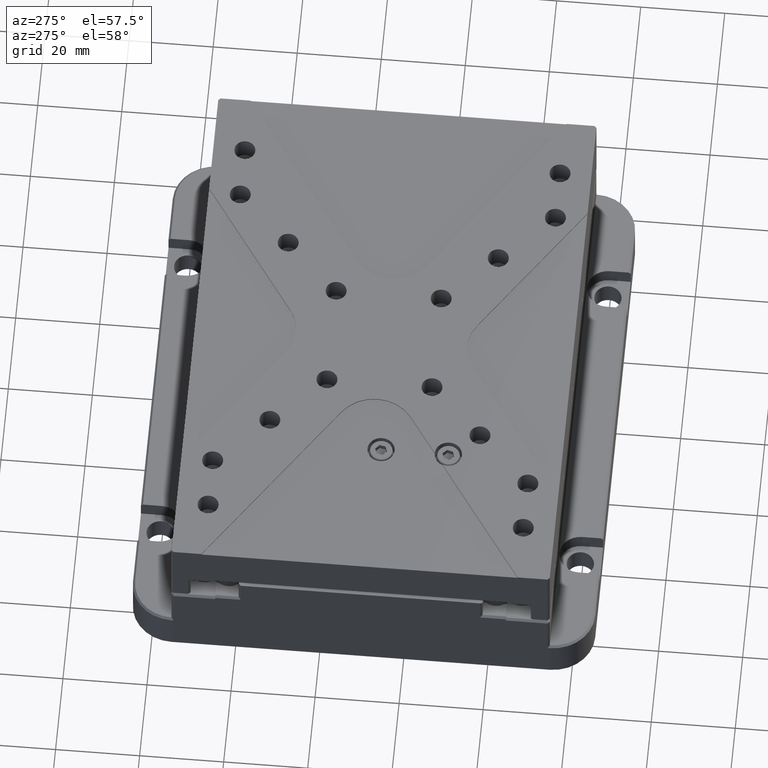
[diagram: clean part render]
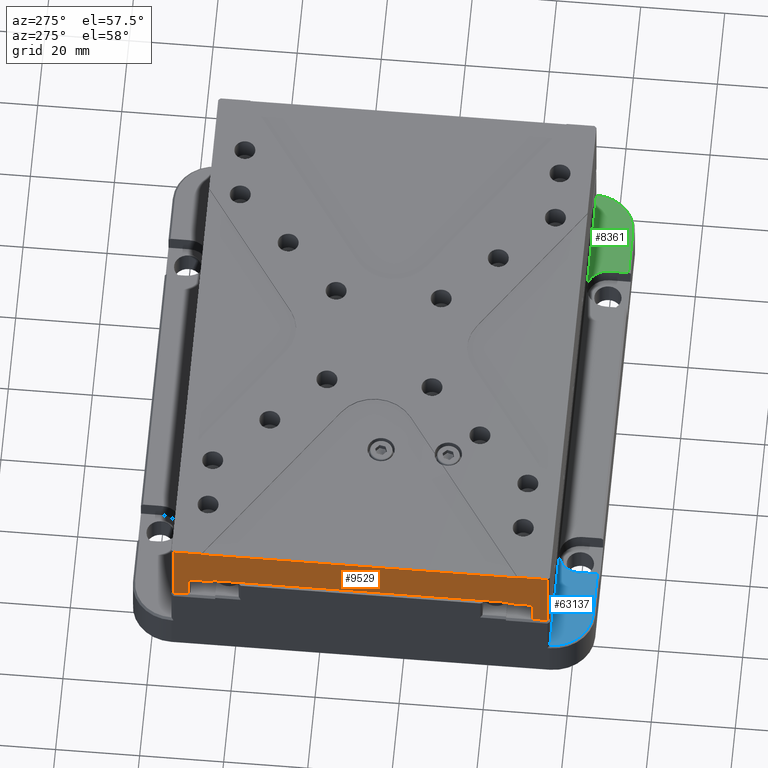
[diagram: same view with three faces highlighted in distinct colors, each labeled with its STEP entity id]
A machine part, auxiliary view with three faces highlighted in distinct colors.
Their STEP definitions:

[orange] entity #9529 — the highlighted planar face has unit normal (1, -0, -0).
#150 = EDGE_CURVE ( 'NONE', #39092, #36738, #68547, .T. ) ;
#323 = LINE ( 'NONE', #33739, #15622 ) ;
#990 = VECTOR ( 'NONE', #20573, 1000.000000000000000 ) ;
#1282 = LINE ( 'NONE', #83044, #62174 ) ;
#2472 = ORIENTED_EDGE ( 'NONE', *, *, #13194, .T. ) ;
#6037 = VERTEX_POINT ( 'NONE', #80316 ) ;
#6152 = ORIENTED_EDGE ( 'NONE', *, *, #32731, .F. ) ;
#8226 = LINE ( 'NONE', #56575, #79651 ) ;
#9127 = VECTOR ( 'NONE', #15748, 1000.000000000000000 ) ;
#9359 = CARTESIAN_POINT ( 'NONE',  ( 30.95597744786982020, -50.84936401684891649, 97.60000005662449496 ) ) ;
#9362 = VERTEX_POINT ( 'NONE', #63411 ) ;
#9529 = ADVANCED_FACE ( 'NONE', ( #86405 ), #25721, .F. ) ;
#10842 = ORIENTED_EDGE ( 'NONE', *, *, #24642, .F. ) ;
#11416 = EDGE_CURVE ( 'NONE', #68369, #86529, #84652, .T. ) ;
#12149 = DIRECTION ( 'NONE',  ( 1.665334536937734071E-16, 1.000000000000000000, 1.248069509703174129E-17 ) ) ;
#12668 = VERTEX_POINT ( 'NONE', #48337 ) ;
#13194 = EDGE_CURVE ( 'NONE', #27539, #63888, #42812, .T. ) ;
#14045 = CARTESIAN_POINT ( 'NONE',  ( 30.95597744786982020, -54.34936401684886675, 91.40000005662446370 ) ) ;
#15622 = VECTOR ( 'NONE', #20652, 1000.000000000000000 ) ;
#15748 = DIRECTION ( 'NONE',  ( 6.066855294798936708E-16, -1.248069509703184298E-17, 1.000000000000000000 ) ) ;
#16308 = LINE ( 'NONE', #43874, #17819 ) ;
#17819 = VECTOR ( 'NONE', #43441, 1000.000000000000000 ) ;
#18500 = LINE ( 'NONE', #80829, #77649 ) ;
#19748 = CARTESIAN_POINT ( 'NONE',  ( 30.95597744786982020, -18.06410326051565818, 97.60000005662449496 ) ) ;
#20448 = EDGE_CURVE ( 'NONE', #82273, #78954, #1282, .T. ) ;
#20573 = DIRECTION ( 'NONE',  ( -6.066855294798936708E-16, 1.248069509703184298E-17, -1.000000000000000000 ) ) ;
#20584 = VECTOR ( 'NONE', #60401, 1000.000000000000000 ) ;
#20652 = DIRECTION ( 'NONE',  ( -6.066855294798936708E-16, 1.248069509703184298E-17, -1.000000000000000000 ) ) ;
#20783 = ORIENTED_EDGE ( 'NONE', *, *, #39473, .F. ) ;
#21773 = EDGE_CURVE ( 'NONE', #81823, #63888, #27061, .T. ) ;
#21851 = ORIENTED_EDGE ( 'NONE', *, *, #81367, .T. ) ;
#21897 = CARTESIAN_POINT ( 'NONE',  ( 30.95597744786982020, -50.84936401684891649, 91.40000005662446370 ) ) ;
#21916 = CARTESIAN_POINT ( 'NONE',  ( 30.95597744786984862, 28.03780510612214272, 109.2000000566244609 ) ) ;
#22422 = CARTESIAN_POINT ( 'NONE',  ( 30.95597744786982020, -47.24835123479293486, 109.4000000566244495 ) ) ;
#24642 = EDGE_CURVE ( 'NONE', #26976, #60783, #53006, .T. ) ;
#24687 = ORIENTED_EDGE ( 'NONE', *, *, #52074, .F. ) ;
#25377 = EDGE_CURVE ( 'NONE', #69481, #6037, #84950, .T. ) ;
#25711 = LINE ( 'NONE', #27529, #33698 ) ;
#25721 = PLANE ( 'NONE',  #75325 ) ;
#26826 = DIRECTION ( 'NONE',  ( 1.665334536937734071E-16, 1.000000000000000000, 1.248069509703174129E-17 ) ) ;
#26976 = VERTEX_POINT ( 'NONE', #36681 ) ;
#27061 = LINE ( 'NONE', #75406, #29161 ) ;
#27529 = CARTESIAN_POINT ( 'NONE',  ( 30.95597744786982020, -47.24835123479291354, 109.2000000566244609 ) ) ;
#27539 = VERTEX_POINT ( 'NONE', #21916 ) ;
#28255 = VECTOR ( 'NONE', #57094, 1000.000000000000000 ) ;
#28646 = CARTESIAN_POINT ( 'NONE',  ( 30.95597744786982020, 25.05063598315110696, 98.10000005662445233 ) ) ;
#29161 = VECTOR ( 'NONE', #54602, 1000.000000000000000 ) ;
#30719 = CARTESIAN_POINT ( 'NONE',  ( 30.95597744786982020, -18.06410326051565818, 109.4000000566244495 ) ) ;
#31620 = ORIENTED_EDGE ( 'NONE', *, *, #21773, .F. ) ;
#32731 = EDGE_CURVE ( 'NONE', #27539, #12668, #18500, .T. ) ;
#33281 = CARTESIAN_POINT ( 'NONE',  ( 30.95597744786984862, 34.65063598315111193, 109.4000000566244495 ) ) ;
#33698 = VECTOR ( 'NONE', #41063, 1000.000000000000000 ) ;
#33739 = CARTESIAN_POINT ( 'NONE',  ( 30.95597744786982020, -54.34936401684882412, 90.90000005662444948 ) ) ;
#33810 = DIRECTION ( 'NONE',  ( -6.066855294798936708E-16, 1.248069509703184298E-17, -1.000000000000000000 ) ) ;
#34813 = ORIENTED_EDGE ( 'NONE', *, *, #45087, .T. ) ;
#36074 = ORIENTED_EDGE ( 'NONE', *, *, #20448, .F. ) ;
#36405 = VECTOR ( 'NONE', #77159, 1000.000000000000000 ) ;
#36567 = CARTESIAN_POINT ( 'NONE',  ( 30.95597744786984862, 28.03780510612214272, 109.4000000566244495 ) ) ;
#36681 = CARTESIAN_POINT ( 'NONE',  ( 30.95597744786982020, 31.15063598315111548, 91.40000005662444948 ) ) ;
#36738 = VERTEX_POINT ( 'NONE', #65173 ) ;
#37960 = VECTOR ( 'NONE', #41930, 1000.000000000000000 ) ;
#39092 = VERTEX_POINT ( 'NONE', #74085 ) ;
#39473 = EDGE_CURVE ( 'NONE', #9362, #26976, #61671, .T. ) ;
#39665 = DIRECTION ( 'NONE',  ( 6.066855294798936708E-16, -1.248069509703184298E-17, 1.000000000000000000 ) ) ;
#39743 = CARTESIAN_POINT ( 'NONE',  ( 30.95597744786982020, 34.65063598315111193, 91.40000005662444948 ) ) ;
#40527 = EDGE_CURVE ( 'NONE', #6037, #85855, #323, .T. ) ;
#41002 = CARTESIAN_POINT ( 'NONE',  ( 30.95597744786982020, -44.74936401684887244, 90.90000005662444948 ) ) ;
#41063 = DIRECTION ( 'NONE',  ( -6.066855294798936708E-16, 1.248069509703184298E-17, -1.000000000000000000 ) ) ;
#41500 = ORIENTED_EDGE ( 'NONE', *, *, #11416, .F. ) ;
#41930 = DIRECTION ( 'NONE',  ( 1.665334536937734071E-16, 1.000000000000000000, 1.248069509703174129E-17 ) ) ;
#42812 = LINE ( 'NONE', #49574, #36405 ) ;
#43441 = DIRECTION ( 'NONE',  ( -1.076385208674003086E-16, -1.000000000000000000, 4.641423772934125395E-17 ) ) ;
#43874 = CARTESIAN_POINT ( 'NONE',  ( 30.95597744786982020, -18.06410326051565818, 98.10000005662445233 ) ) ;
#45087 = EDGE_CURVE ( 'NONE', #82273, #36738, #16308, .T. ) ;
#48065 = ORIENTED_EDGE ( 'NONE', *, *, #40527, .F. ) ;
#48337 = CARTESIAN_POINT ( 'NONE',  ( 30.95597744786982020, -47.24835123479292065, 109.2000000566244609 ) ) ;
#49574 = CARTESIAN_POINT ( 'NONE',  ( 30.95597744786984862, 28.03780510612214982, 109.2000000566244609 ) ) ;
#51528 = EDGE_CURVE ( 'NONE', #85855, #68369, #8226, .T. ) ;
#52074 = EDGE_CURVE ( 'NONE', #86529, #39092, #88872, .T. ) ;
#52494 = ORIENTED_EDGE ( 'NONE', *, *, #150, .F. ) ;
#53006 = LINE ( 'NONE', #80578, #67634 ) ;
#53417 = CARTESIAN_POINT ( 'NONE',  ( 30.95597744786982020, 25.05063598315111406, 97.60000005662445233 ) ) ;
#54602 = DIRECTION ( 'NONE',  ( -1.665334536937734071E-16, -1.000000000000000000, -1.248069509703174129E-17 ) ) ;
#55178 = LINE ( 'NONE', #89084, #9127 ) ;
#55874 = ORIENTED_EDGE ( 'NONE', *, *, #65232, .F. ) ;
#56575 = CARTESIAN_POINT ( 'NONE',  ( 30.95597744786982020, -18.06410326051565818, 91.40000005662446370 ) ) ;
#57094 = DIRECTION ( 'NONE',  ( 6.066855294798936708E-16, -1.248069509703184298E-17, 1.000000000000000000 ) ) ;
#57965 = CARTESIAN_POINT ( 'NONE',  ( 30.95597744786982020, -50.84936401684890228, 90.90000005662444948 ) ) ;
#60401 = DIRECTION ( 'NONE',  ( 1.665334536937734071E-16, 1.000000000000000000, 1.248069509703174129E-17 ) ) ;
#60783 = VERTEX_POINT ( 'NONE', #39743 ) ;
#61671 = LINE ( 'NONE', #89259, #990 ) ;
#61966 = EDGE_LOOP ( 'NONE', ( #2472, #31620, #84292, #10842, #20783, #55874, #36074, #34813, #52494, #24687, #41500, #66328, #48065, #73622, #21851, #6152 ) ) ;
#62174 = VECTOR ( 'NONE', #33810, 1000.000000000000000 ) ;
#63411 = CARTESIAN_POINT ( 'NONE',  ( 30.95597744786982020, 31.15063598315112259, 97.60000005662445233 ) ) ;
#63888 = VERTEX_POINT ( 'NONE', #36567 ) ;
#65173 = CARTESIAN_POINT ( 'NONE',  ( 30.95597744786982020, -44.74936401684887244, 98.10000005662445233 ) ) ;
#65232 = EDGE_CURVE ( 'NONE', #78954, #9362, #83476, .T. ) ;
#66328 = ORIENTED_EDGE ( 'NONE', *, *, #51528, .F. ) ;
#67534 = VECTOR ( 'NONE', #78194, 1000.000000000000000 ) ;
#67634 = VECTOR ( 'NONE', #26826, 1000.000000000000000 ) ;
#68369 = VERTEX_POINT ( 'NONE', #21897 ) ;
#68547 = LINE ( 'NONE', #41002, #87394 ) ;
#69029 = CARTESIAN_POINT ( 'NONE',  ( 30.95597744786982020, -18.06410326051565818, 97.60000005662445233 ) ) ;
#69481 = VERTEX_POINT ( 'NONE', #22422 ) ;
#70122 = DIRECTION ( 'NONE',  ( 1.665334536937734071E-16, 1.000000000000000000, 1.248069509703174129E-17 ) ) ;
#73622 = ORIENTED_EDGE ( 'NONE', *, *, #25377, .F. ) ;
#74043 = DIRECTION ( 'NONE',  ( 1.000000000000000000, -1.665334536937734071E-16, -6.066855294798936708E-16 ) ) ;
#74085 = CARTESIAN_POINT ( 'NONE',  ( 30.95597744786982020, -44.74936401684888665, 97.60000005662448075 ) ) ;
#75325 = AXIS2_PLACEMENT_3D ( 'NONE', #80833, #74043, #12149 ) ;
#75406 = CARTESIAN_POINT ( 'NONE',  ( 30.95597744786982020, -18.06410326051565818, 109.4000000566244495 ) ) ;
#77159 = DIRECTION ( 'NONE',  ( 6.066855294798936708E-16, -1.248069509703184298E-17, 1.000000000000000000 ) ) ;
#77649 = VECTOR ( 'NONE', #81705, 1000.000000000000000 ) ;
#78194 = DIRECTION ( 'NONE',  ( -1.665334536937734071E-16, -1.000000000000000000, -1.248069509703174129E-17 ) ) ;
#78954 = VERTEX_POINT ( 'NONE', #53417 ) ;
#79651 = VECTOR ( 'NONE', #70122, 1000.000000000000000 ) ;
#80316 = CARTESIAN_POINT ( 'NONE',  ( 30.95597744786982020, -54.34936401684883833, 109.4000000566244495 ) ) ;
#80578 = CARTESIAN_POINT ( 'NONE',  ( 30.95597744786982020, -18.06410326051565818, 91.40000005662444948 ) ) ;
#80829 = CARTESIAN_POINT ( 'NONE',  ( 30.95597744786982020, -18.06410326051565818, 109.2000000566244609 ) ) ;
#80833 = CARTESIAN_POINT ( 'NONE',  ( 30.95597744786982020, -18.06410326051565818, 90.90000005662444948 ) ) ;
#81367 = EDGE_CURVE ( 'NONE', #69481, #12668, #25711, .T. ) ;
#81705 = DIRECTION ( 'NONE',  ( -1.665334536937734071E-16, -1.000000000000000000, -1.248069509703174129E-17 ) ) ;
#81823 = VERTEX_POINT ( 'NONE', #33281 ) ;
#82273 = VERTEX_POINT ( 'NONE', #28646 ) ;
#82601 = EDGE_CURVE ( 'NONE', #60783, #81823, #55178, .T. ) ;
#83044 = CARTESIAN_POINT ( 'NONE',  ( 30.95597744786982020, 25.05063598315110696, 90.90000005662444948 ) ) ;
#83476 = LINE ( 'NONE', #69029, #37960 ) ;
#84292 = ORIENTED_EDGE ( 'NONE', *, *, #82601, .F. ) ;
#84652 = LINE ( 'NONE', #57965, #28255 ) ;
#84950 = LINE ( 'NONE', #30719, #67534 ) ;
#85855 = VERTEX_POINT ( 'NONE', #14045 ) ;
#86405 = FACE_OUTER_BOUND ( 'NONE', #61966, .T. ) ;
#86529 = VERTEX_POINT ( 'NONE', #9359 ) ;
#87394 = VECTOR ( 'NONE', #39665, 1000.000000000000000 ) ;
#88872 = LINE ( 'NONE', #19748, #20584 ) ;
#89084 = CARTESIAN_POINT ( 'NONE',  ( 30.95597744786982020, 34.65063598315110482, 90.90000005662444948 ) ) ;
#89259 = CARTESIAN_POINT ( 'NONE',  ( 30.95597744786982020, 31.15063598315110838, 90.90000005662444948 ) ) ;

[blue] entity #63137 — the highlighted planar face has unit normal (0, 0, 1).
#2005 = VERTEX_POINT ( 'NONE', #3601 ) ;
#2825 = VERTEX_POINT ( 'NONE', #19150 ) ;
#3601 = CARTESIAN_POINT ( 'NONE',  ( 31.39232537422615010, -54.84936401684888096, 79.80000005662439833 ) ) ;
#4230 = CARTESIAN_POINT ( 'NONE',  ( 40.89232537422616076, -54.84936401684885254, 79.80000005662441254 ) ) ;
#5107 = DIRECTION ( 'NONE',  ( -1.387778780781442520E-15, 1.000000000000000000, -0.000000000000000000 ) ) ;
#9254 = LINE ( 'NONE', #64380, #49263 ) ;
#9312 = CARTESIAN_POINT ( 'NONE',  ( 57.39232537422615366, -59.84936401684885965, 79.80000005662441254 ) ) ;
#9406 = CIRCLE ( 'NONE', #59895, 9.500000000000001776 ) ;
#10979 = PLANE ( 'NONE',  #13118 ) ;
#13118 = AXIS2_PLACEMENT_3D ( 'NONE', #4230, #25003, #52535 ) ;
#14889 = VECTOR ( 'NONE', #22493, 1000.000000000000000 ) ;
#17148 = ORIENTED_EDGE ( 'NONE', *, *, #46002, .T. ) ;
#19150 = CARTESIAN_POINT ( 'NONE',  ( 40.89232537422619629, -64.34936401684885254, 79.80000005662442675 ) ) ;
#20790 = EDGE_CURVE ( 'NONE', #37555, #2825, #9254, .T. ) ;
#21884 = CARTESIAN_POINT ( 'NONE',  ( 52.39232537422614655, -64.34936401684885254, 79.80000005662441254 ) ) ;
#22493 = DIRECTION ( 'NONE',  ( -1.000000000000000000, -0.000000000000000000, 0.000000000000000000 ) ) ;
#25003 = DIRECTION ( 'NONE',  ( 0.000000000000000000, 0.000000000000000000, 1.000000000000000000 ) ) ;
#26584 = AXIS2_PLACEMENT_3D ( 'NONE', #9312, #63566, #64442 ) ;
#28925 = EDGE_CURVE ( 'NONE', #37555, #89412, #80124, .T. ) ;
#30644 = CARTESIAN_POINT ( 'NONE',  ( 40.89232537422616076, -54.84936401684885254, 79.80000005662442675 ) ) ;
#37555 = VERTEX_POINT ( 'NONE', #21884 ) ;
#38131 = CIRCLE ( 'NONE', #26584, 5.000000000000011546 ) ;
#42388 = CARTESIAN_POINT ( 'NONE',  ( 40.89232537422616076, -54.84936401684885254, 79.80000005662441254 ) ) ;
#42733 = ORIENTED_EDGE ( 'NONE', *, *, #28925, .T. ) ;
#42836 = LINE ( 'NONE', #42388, #14889 ) ;
#43757 = DIRECTION ( 'NONE',  ( -1.000000000000000000, 0.000000000000000000, 0.000000000000000000 ) ) ;
#44184 = ORIENTED_EDGE ( 'NONE', *, *, #80485, .T. ) ;
#44353 = EDGE_CURVE ( 'NONE', #2825, #2005, #9406, .T. ) ;
#46002 = EDGE_CURVE ( 'NONE', #89412, #84972, #38131, .T. ) ;
#49263 = VECTOR ( 'NONE', #70264, 1000.000000000000000 ) ;
#50456 = VECTOR ( 'NONE', #5107, 1000.000000000000000 ) ;
#51391 = DIRECTION ( 'NONE',  ( 0.000000000000000000, 0.000000000000000000, -1.000000000000000000 ) ) ;
#52535 = DIRECTION ( 'NONE',  ( 1.000000000000000000, 0.000000000000000000, -0.000000000000000000 ) ) ;
#54681 = CARTESIAN_POINT ( 'NONE',  ( 57.39232537422615366, -54.84936401684885254, 79.80000005662441254 ) ) ;
#59261 = ORIENTED_EDGE ( 'NONE', *, *, #44353, .F. ) ;
#59895 = AXIS2_PLACEMENT_3D ( 'NONE', #30644, #51391, #43757 ) ;
#60353 = ORIENTED_EDGE ( 'NONE', *, *, #20790, .F. ) ;
#63137 = ADVANCED_FACE ( 'NONE', ( #85117 ), #10979, .T. ) ;
#63566 = DIRECTION ( 'NONE',  ( 0.000000000000000000, 0.000000000000000000, -1.000000000000000000 ) ) ;
#64380 = CARTESIAN_POINT ( 'NONE',  ( 40.89232537422616076, -64.34936401684885254, 79.80000005662441254 ) ) ;
#64442 = DIRECTION ( 'NONE',  ( 1.000000000000000000, 0.000000000000000000, 0.000000000000000000 ) ) ;
#69971 = CARTESIAN_POINT ( 'NONE',  ( 52.39232537422614655, -59.84936401684885965, 79.80000005662441254 ) ) ;
#70264 = DIRECTION ( 'NONE',  ( -1.000000000000000000, -0.000000000000000000, -0.000000000000000000 ) ) ;
#73911 = EDGE_LOOP ( 'NONE', ( #42733, #17148, #44184, #59261, #60353 ) ) ;
#80124 = LINE ( 'NONE', #81455, #50456 ) ;
#80485 = EDGE_CURVE ( 'NONE', #84972, #2005, #42836, .T. ) ;
#81455 = CARTESIAN_POINT ( 'NONE',  ( 52.39232537422614655, -59.84936401684885965, 79.80000005662441254 ) ) ;
#84972 = VERTEX_POINT ( 'NONE', #54681 ) ;
#85117 = FACE_OUTER_BOUND ( 'NONE', #73911, .T. ) ;
#89412 = VERTEX_POINT ( 'NONE', #69971 ) ;

[green] entity #8361 — the highlighted planar face has unit normal (0, 0, 1).
#2716 = ORIENTED_EDGE ( 'NONE', *, *, #24541, .F. ) ;
#2877 = LINE ( 'NONE', #79227, #37465 ) ;
#5656 = EDGE_CURVE ( 'NONE', #67802, #21274, #63472, .T. ) ;
#8361 = ADVANCED_FACE ( 'NONE', ( #53763 ), #42013, .T. ) ;
#10622 = ORIENTED_EDGE ( 'NONE', *, *, #5656, .T. ) ;
#12075 = CARTESIAN_POINT ( 'NONE',  ( 132.3923253742261466, -54.84936401684885254, 79.80000005662441254 ) ) ;
#12643 = DIRECTION ( 'NONE',  ( 1.000000000000000000, 0.000000000000000000, -0.000000000000000000 ) ) ;
#16029 = ORIENTED_EDGE ( 'NONE', *, *, #24585, .T. ) ;
#17706 = ORIENTED_EDGE ( 'NONE', *, *, #74684, .T. ) ;
#20157 = DIRECTION ( 'NONE',  ( -1.387778780781442520E-15, -1.000000000000000000, -0.000000000000000000 ) ) ;
#21030 = CARTESIAN_POINT ( 'NONE',  ( 137.3923253742261750, -59.84936401684884544, 79.80000005662441254 ) ) ;
#21274 = VERTEX_POINT ( 'NONE', #38047 ) ;
#24541 = EDGE_CURVE ( 'NONE', #77771, #87715, #69071, .T. ) ;
#24585 = EDGE_CURVE ( 'NONE', #77771, #67802, #47588, .T. ) ;
#26369 = DIRECTION ( 'NONE',  ( -1.000000000000000000, 0.000000000000000000, 0.000000000000000000 ) ) ;
#27291 = CARTESIAN_POINT ( 'NONE',  ( 148.8923253742261466, -54.84936401684885254, 79.80000005662439833 ) ) ;
#27842 = LINE ( 'NONE', #21030, #38691 ) ;
#31728 = AXIS2_PLACEMENT_3D ( 'NONE', #83988, #68643, #41093 ) ;
#34343 = DIRECTION ( 'NONE',  ( 0.000000000000000000, 0.000000000000000000, 1.000000000000000000 ) ) ;
#37465 = VECTOR ( 'NONE', #86873, 1000.000000000000000 ) ;
#38047 = CARTESIAN_POINT ( 'NONE',  ( 137.3923253742261750, -59.84936401684885965, 79.80000005662441254 ) ) ;
#38691 = VECTOR ( 'NONE', #20157, 1000.000000000000000 ) ;
#40242 = AXIS2_PLACEMENT_3D ( 'NONE', #27291, #75614, #26369 ) ;
#41093 = DIRECTION ( 'NONE',  ( 1.000000000000000000, 0.000000000000000000, 0.000000000000000000 ) ) ;
#41682 = VECTOR ( 'NONE', #54359, 1000.000000000000000 ) ;
#42013 = PLANE ( 'NONE',  #82266 ) ;
#47588 = LINE ( 'NONE', #88717, #41682 ) ;
#48997 = CARTESIAN_POINT ( 'NONE',  ( 137.3923253742262318, -64.34936401684885254, 79.80000005662441254 ) ) ;
#53763 = FACE_OUTER_BOUND ( 'NONE', #88473, .T. ) ;
#54359 = DIRECTION ( 'NONE',  ( -1.000000000000000000, -0.000000000000000000, 0.000000000000000000 ) ) ;
#55442 = ORIENTED_EDGE ( 'NONE', *, *, #61315, .F. ) ;
#58737 = CARTESIAN_POINT ( 'NONE',  ( 158.3923253742261466, -54.84936401684886675, 79.80000005662441254 ) ) ;
#61302 = VERTEX_POINT ( 'NONE', #48997 ) ;
#61315 = EDGE_CURVE ( 'NONE', #87715, #61302, #2877, .T. ) ;
#63472 = CIRCLE ( 'NONE', #31728, 5.000000000000004441 ) ;
#67802 = VERTEX_POINT ( 'NONE', #12075 ) ;
#68643 = DIRECTION ( 'NONE',  ( 0.000000000000000000, 0.000000000000000000, -1.000000000000000000 ) ) ;
#69071 = CIRCLE ( 'NONE', #40242, 9.500000000000008882 ) ;
#74684 = EDGE_CURVE ( 'NONE', #21274, #61302, #27842, .T. ) ;
#75010 = CARTESIAN_POINT ( 'NONE',  ( 40.89232537422616076, -54.84936401684885254, 79.80000005662441254 ) ) ;
#75614 = DIRECTION ( 'NONE',  ( 0.000000000000000000, 0.000000000000000000, -1.000000000000000000 ) ) ;
#77771 = VERTEX_POINT ( 'NONE', #58737 ) ;
#79227 = CARTESIAN_POINT ( 'NONE',  ( 40.89232537422616076, -64.34936401684885254, 79.80000005662441254 ) ) ;
#82266 = AXIS2_PLACEMENT_3D ( 'NONE', #75010, #34343, #12643 ) ;
#83988 = CARTESIAN_POINT ( 'NONE',  ( 132.3923253742261466, -59.84936401684885965, 79.80000005662441254 ) ) ;
#86873 = DIRECTION ( 'NONE',  ( -1.000000000000000000, -0.000000000000000000, -0.000000000000000000 ) ) ;
#87715 = VERTEX_POINT ( 'NONE', #88160 ) ;
#88160 = CARTESIAN_POINT ( 'NONE',  ( 148.8923253742261181, -64.34936401684886675, 79.80000005662439833 ) ) ;
#88473 = EDGE_LOOP ( 'NONE', ( #10622, #17706, #55442, #2716, #16029 ) ) ;
#88717 = CARTESIAN_POINT ( 'NONE',  ( 30.89232537422617497, -54.84936401684885254, 79.80000005662441254 ) ) ;